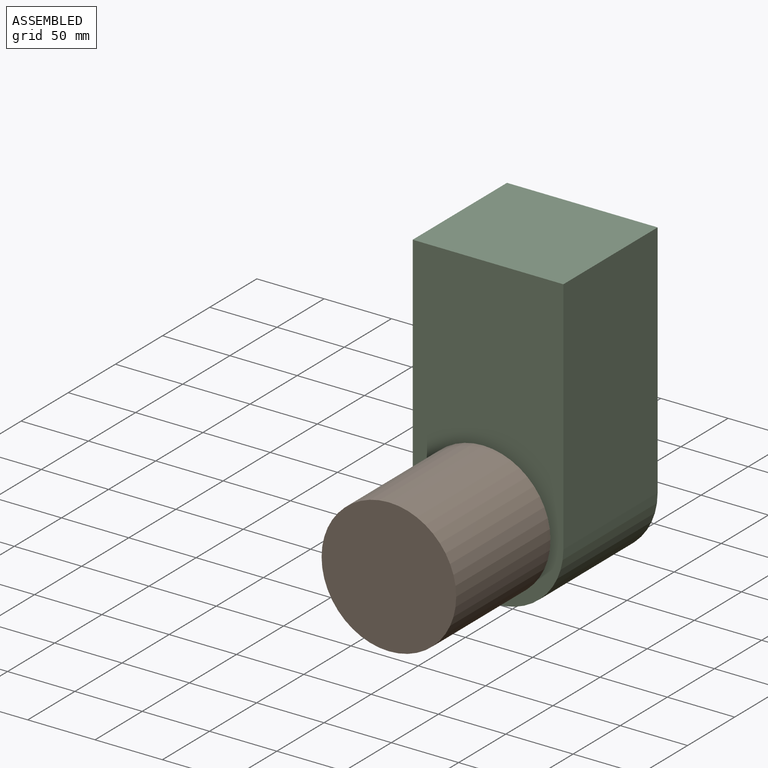
[diagram: assembled view]
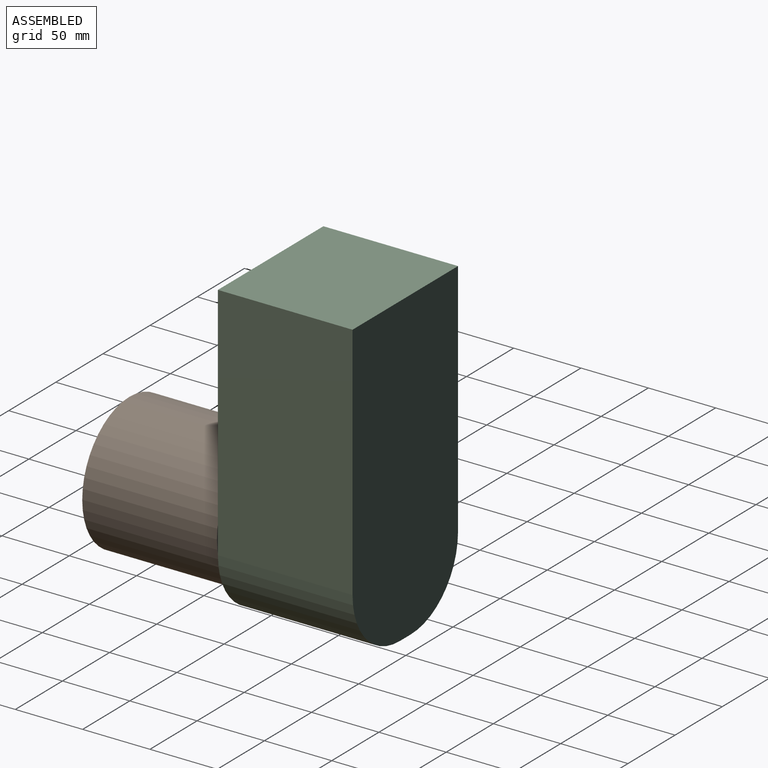
[diagram: assembled view, second angle]
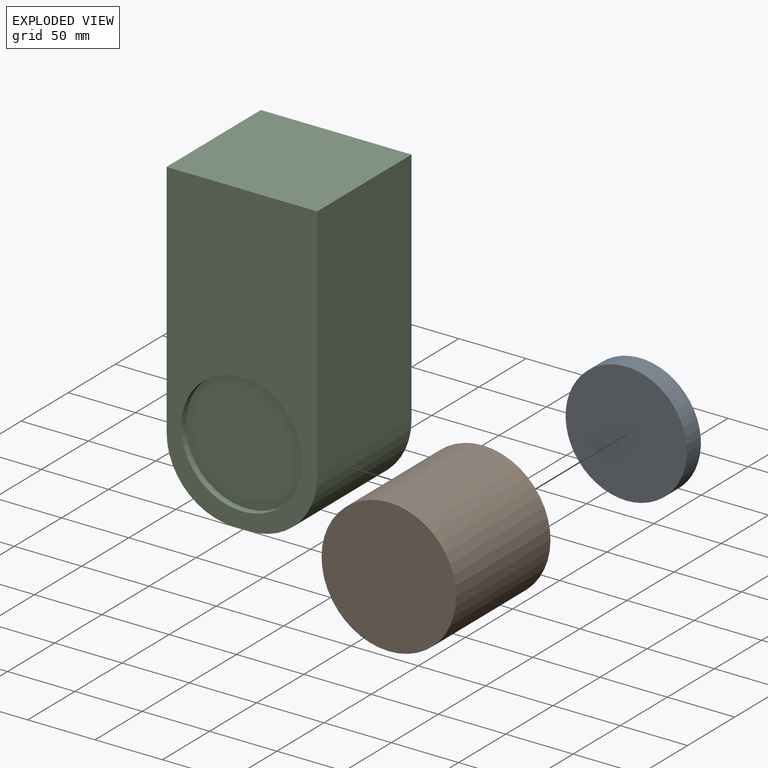
[diagram: exploded view]
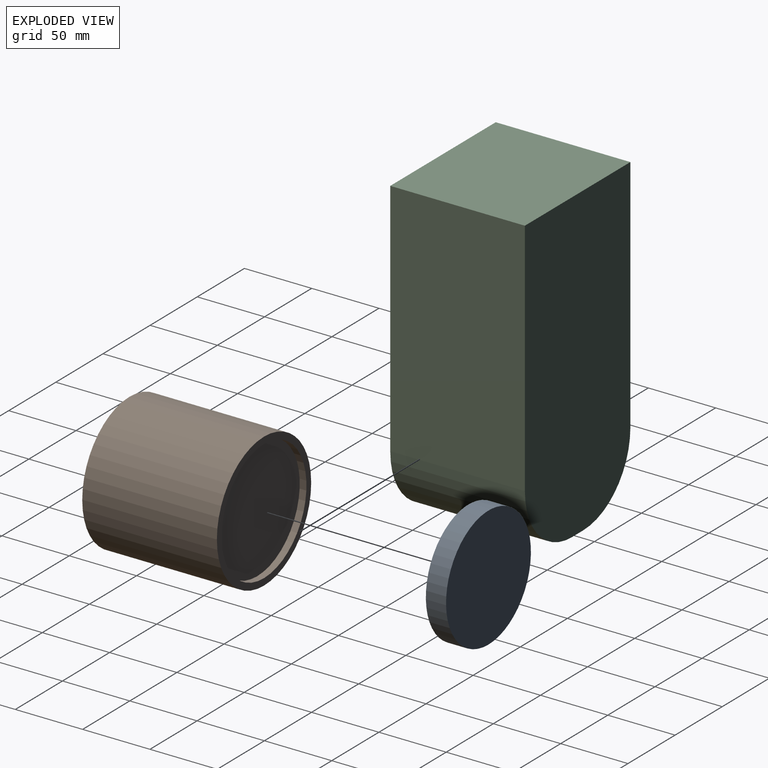
[diagram: exploded view, second angle]
ASSEMBLY  parts=3 mates=2
PART A: 3 faces, bbox 90x15x90 mm
  f0: cylinder r=45mm len=90mm, axis (0,1,0), area 4241.2mm2, adj f1,f2
  f1: plane 90x90mm, normal (0,-1,0), area 6361.7mm2, adj f0
  f2: plane 90x90mm, normal (0,1,0), area 6361.7mm2, adj f0
PART B: 5 faces, bbox 100x100x100 mm
  f0: cylinder r=50mm len=100mm, axis (0,1,0), area 31415.9mm2, adj f1,f2
  f1: plane 100x100mm, normal (0,-1,0), area 7854mm2, adj f0
  f2: plane 100x100mm, normal (0,1,0), area 1492.3mm2, adj f0,f3
  f3: cylinder r=45mm len=90mm, axis (0,1,0), area 1413.7mm2, adj f2,f4
  f4: plane 90x90mm, normal (0,1,0), area 6361.7mm2, adj f3
PART C: 10 faces, bbox 228.1x100x111.9 mm
  f0: plane 100x11.88mm, normal (1,0,0), area 1187.6mm2, adj f4,f5,f8,f9
  f1: plane 178.11x100mm, normal (0,0,1), area 17810.9mm2, adj f2,f4,f5,f8
  f2: plane 111.88x100mm, normal (-1,0,0), area 11187.6mm2, adj f1,f3,f4,f5
  f3: plane 178.11x100mm, normal (0,0,-1), area 17810.9mm2, adj f2,f4,f5,f9
  f4: plane 228.11x111.88mm, normal (0,-1,0), area 24447mm2, adj f0,f1,f2,f3,f8,f9
  f5: plane 228.11x111.88mm, normal (0,1,0), area 18085.3mm2, adj f0,f1,f2,f3,f6,f8,f9
  f6: cylinder r=45mm len=90mm, axis (0,1,0), area 1413.7mm2, adj f5,f7
  f7: plane 90x90mm, normal (0,1,0), area 6361.7mm2, adj f6
  f8: cylinder r=50mm len=100mm, axis (0,-1,0), area 7854mm2, adj f0,f1,f4,f5
  f9: cylinder r=50mm len=100mm, axis (0,1,0), area 7854mm2, adj f0,f3,f4,f5
PLACE A t=(87.86,96.21,-21.78)mm
PLACE B t=(87.86,86.21,-21.78)mm
PLACE C rot(axis=(0.71,0,-0.71),180deg) t=(87.86,91.21,-21.78)mm
MATE revolute C.f6 <-> A.f0  axis (0,-1,0) through (87.86,96.21,-21.78)mm
MATE fastened A.f0 <-> B.f3  axis (0,-1,0) through (87.86,81.21,-21.78)mm
